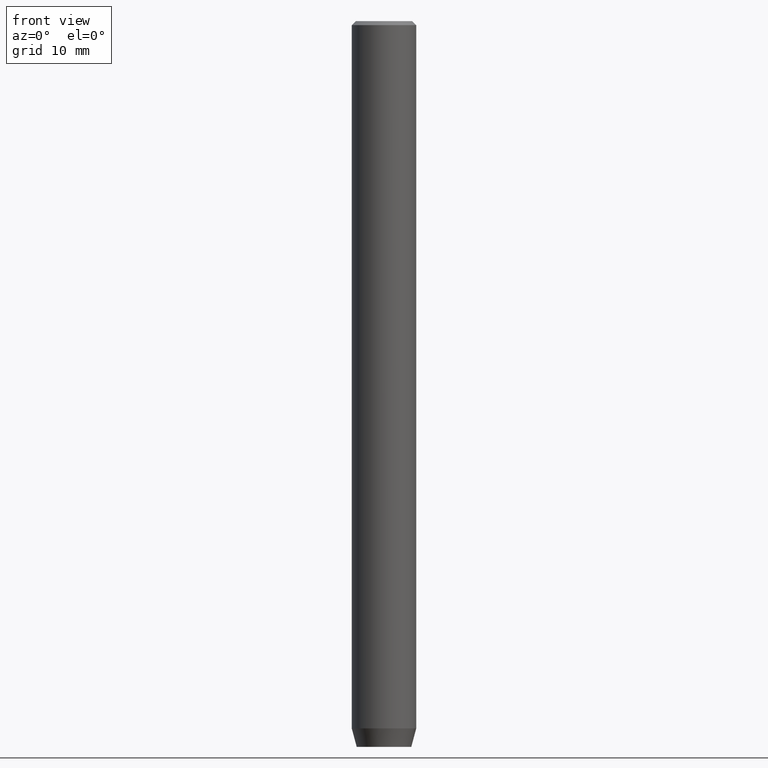
[diagram: clean part render]
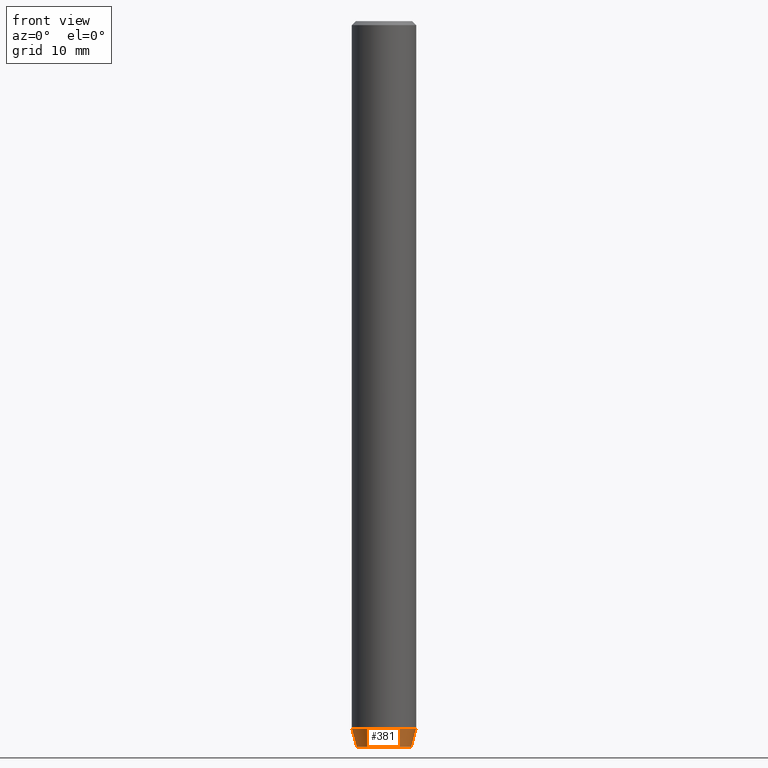
[diagram: same view with one face highlighted and labeled with its STEP entity id]
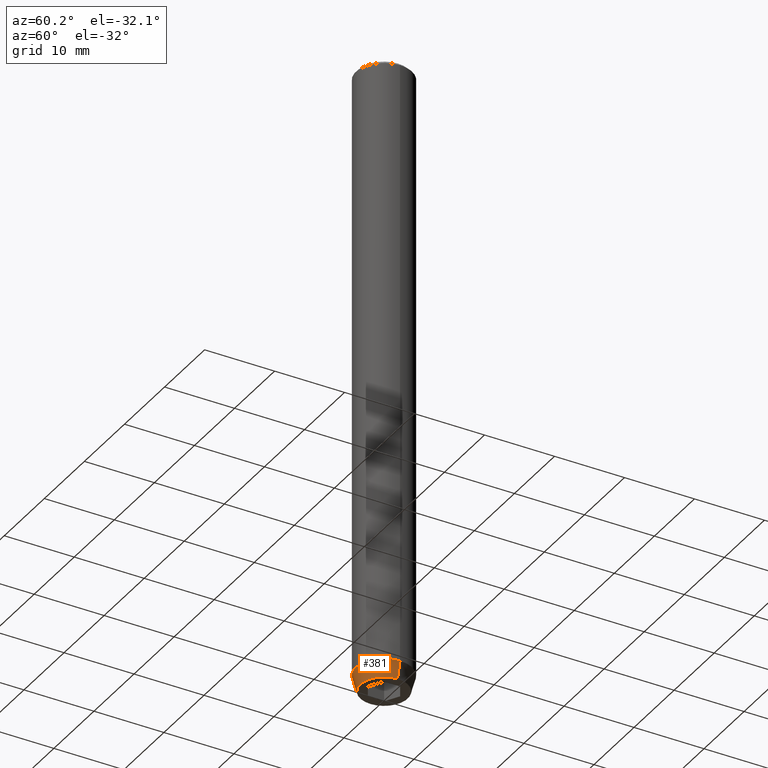
[diagram: same view with one face highlighted and labeled with its STEP entity id]
A machine part, front view. The second image highlights one B-rep face of the part: STEP entity #381.
A second angle (auxiliary view) of the same face is appended — the face is thin or edge-on in the first view.
In plain terms, the highlighted conical surface has half-angle 15 deg.
Its self-contained STEP definition (entity closure, byte-faithful):
#26 = LINE ( 'NONE', #152, #179 ) ;
#39 = EDGE_CURVE ( 'NONE', #122, #66, #262, .T. ) ;
#51 = DIRECTION ( 'NONE',  ( 1.000000000000000000, 0.000000000000000000, 0.000000000000000000 ) ) ;
#66 = VERTEX_POINT ( 'NONE', #413 ) ;
#69 = CARTESIAN_POINT ( 'NONE',  ( 0.000000000000000000, 0.000000000000000000, -90.00000000000000000 ) ) ;
#101 = DIRECTION ( 'NONE',  ( 1.000000000000000000, 0.000000000000000000, 0.000000000000000000 ) ) ;
#113 = DIRECTION ( 'NONE',  ( -0.2588190451025210725, 3.169619151431769255E-17, 0.9659258262890680902 ) ) ;
#122 = VERTEX_POINT ( 'NONE', #563 ) ;
#130 = EDGE_CURVE ( 'NONE', #122, #198, #26, .T. ) ;
#152 = CARTESIAN_POINT ( 'NONE',  ( -4.000000000000000000, 4.898587196589412829E-16, -87.70000000000000284 ) ) ;
#172 = EDGE_LOOP ( 'NONE', ( #523, #249, #564, #442 ) ) ;
#179 = VECTOR ( 'NONE', #113, 1000.000000000000114 ) ;
#198 = VERTEX_POINT ( 'NONE', #331 ) ;
#223 = AXIS2_PLACEMENT_3D ( 'NONE', #69, #562, #101 ) ;
#249 = ORIENTED_EDGE ( 'NONE', *, *, #39, .T. ) ;
#262 = CIRCLE ( 'NONE', #223, 3.383716857408417766 ) ;
#265 = LINE ( 'NONE', #436, #273 ) ;
#273 = VECTOR ( 'NONE', #441, 1000.000000000000114 ) ;
#279 = EDGE_CURVE ( 'NONE', #66, #344, #265, .T. ) ;
#322 = CARTESIAN_POINT ( 'NONE',  ( 4.000000000000000000, 0.000000000000000000, -87.70000000000000284 ) ) ;
#331 = CARTESIAN_POINT ( 'NONE',  ( -4.000000000000000000, 4.898587196589412829E-16, -87.70000000000000284 ) ) ;
#344 = VERTEX_POINT ( 'NONE', #322 ) ;
#360 = AXIS2_PLACEMENT_3D ( 'NONE', #446, #500, #505 ) ;
#381 = ADVANCED_FACE ( 'NONE', ( #506 ), #519, .T. ) ;
#384 = AXIS2_PLACEMENT_3D ( 'NONE', #545, #460, #51 ) ;
#413 = CARTESIAN_POINT ( 'NONE',  ( 3.383716857408417766, 0.000000000000000000, -90.00000000000000000 ) ) ;
#435 = EDGE_CURVE ( 'NONE', #198, #344, #537, .T. ) ;
#436 = CARTESIAN_POINT ( 'NONE',  ( 4.000000000000000000, 0.000000000000000000, -87.70000000000000284 ) ) ;
#441 = DIRECTION ( 'NONE',  ( 0.2588190451025210725, 0.000000000000000000, 0.9659258262890680902 ) ) ;
#442 = ORIENTED_EDGE ( 'NONE', *, *, #435, .F. ) ;
#446 = CARTESIAN_POINT ( 'NONE',  ( 0.000000000000000000, 0.000000000000000000, -87.70000000000000284 ) ) ;
#460 = DIRECTION ( 'NONE',  ( -0.000000000000000000, -0.000000000000000000, 1.000000000000000000 ) ) ;
#500 = DIRECTION ( 'NONE',  ( -0.000000000000000000, -0.000000000000000000, 1.000000000000000000 ) ) ;
#505 = DIRECTION ( 'NONE',  ( 1.000000000000000000, 0.000000000000000000, 0.000000000000000000 ) ) ;
#506 = FACE_OUTER_BOUND ( 'NONE', #172, .T. ) ;
#519 = CONICAL_SURFACE ( 'NONE', #360, 4.000000000000000000, 0.2617993877991497964 ) ;
#523 = ORIENTED_EDGE ( 'NONE', *, *, #130, .F. ) ;
#537 = CIRCLE ( 'NONE', #384, 4.000000000000000000 ) ;
#545 = CARTESIAN_POINT ( 'NONE',  ( 0.000000000000000000, 0.000000000000000000, -87.70000000000000284 ) ) ;
#562 = DIRECTION ( 'NONE',  ( -0.000000000000000000, -0.000000000000000000, 1.000000000000000000 ) ) ;
#563 = CARTESIAN_POINT ( 'NONE',  ( -3.383716857408417766, 4.521222607617785469E-16, -90.00000000000000000 ) ) ;
#564 = ORIENTED_EDGE ( 'NONE', *, *, #279, .T. ) ;